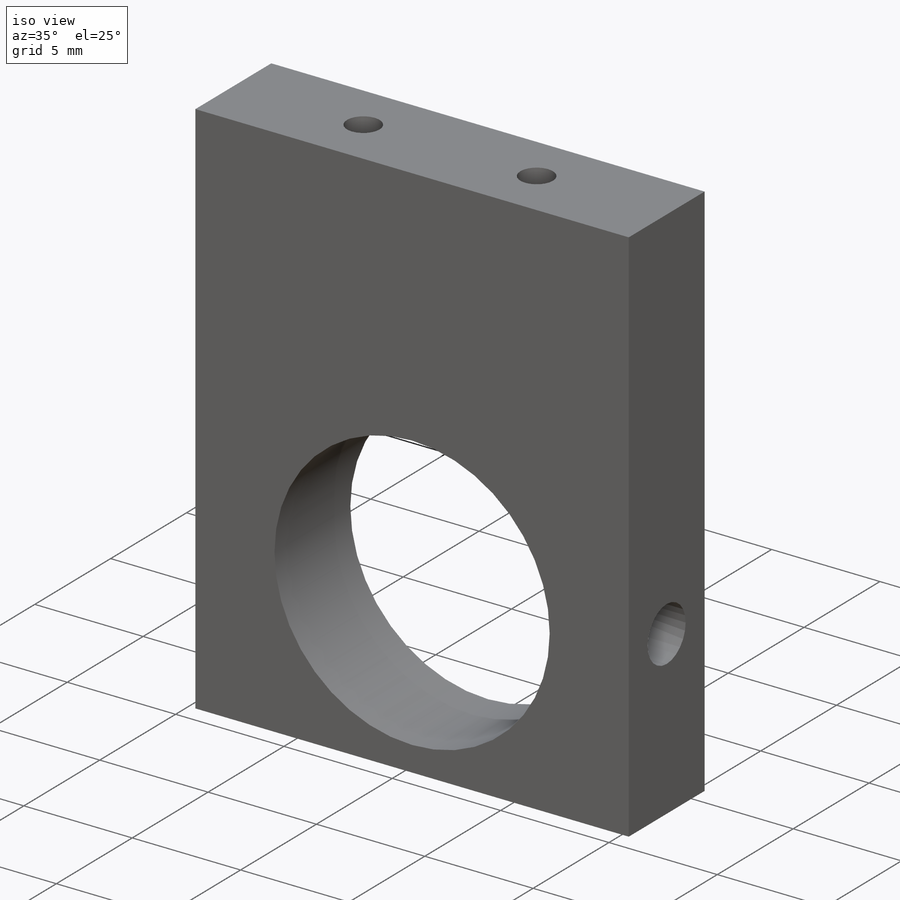
[diagram: iso view]
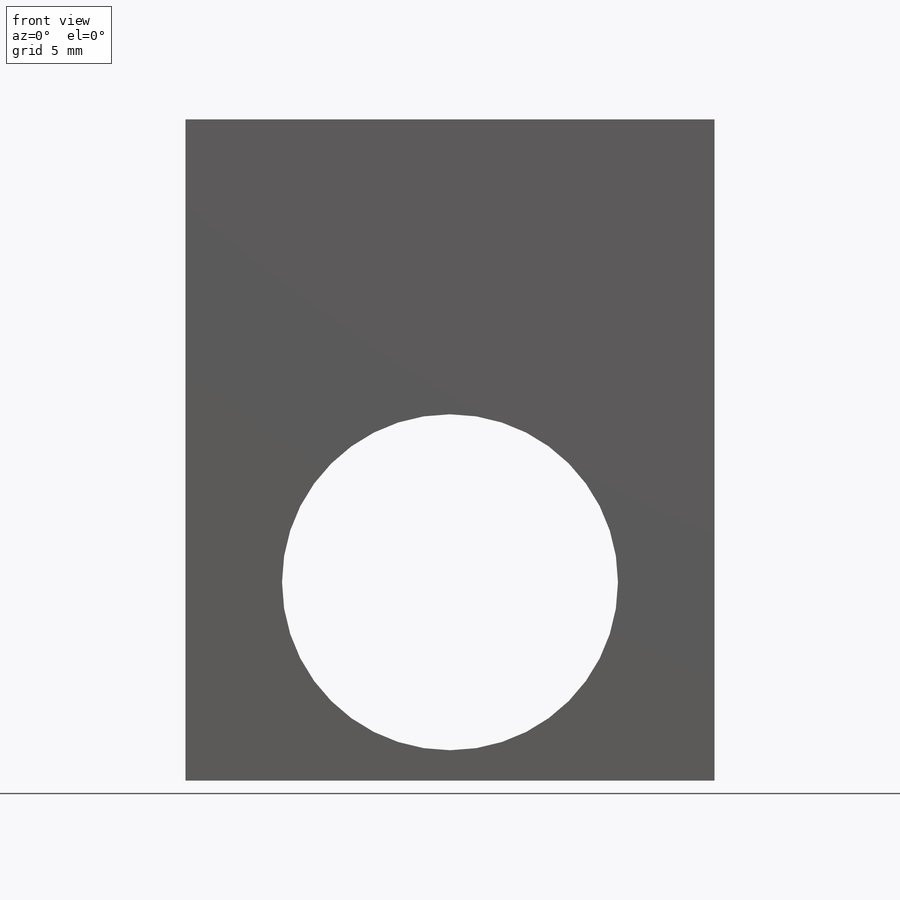
[diagram: front view]
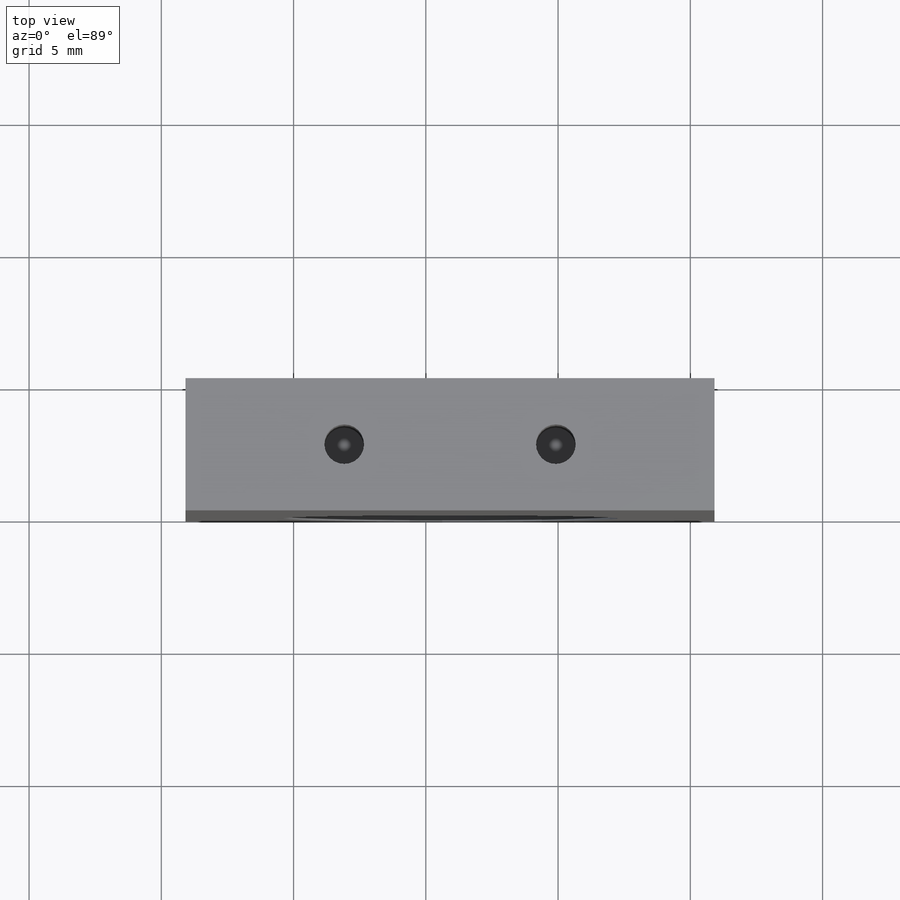
[diagram: top view]
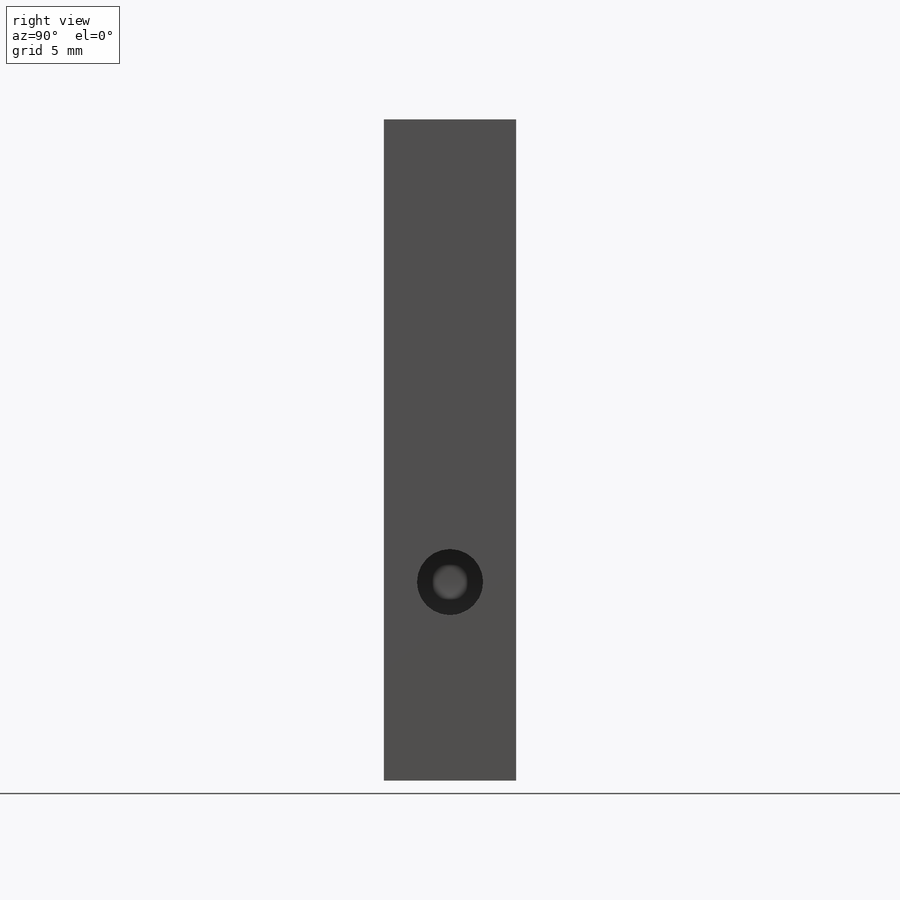
[diagram: right view]
SOLIDWORKS PART (.sldprt)
format: sldprt  version: not decoded by parser v0  size: 164,864 bytes
history: native  units: mm
features: sketch x4, cut_extrude x3, material x1, extrude x1 (+11 scaffold rows collapsed)
feature tree (20):
  scaffold x11  (default folders/planes/origin — collapsed)
  material  "Material <not specified>"
  sketch  "Sketch1"  dims[D1=20.0mm D2=25.0mm]
  extrude  "Boss-Extrude1"  Depth=5mm
  sketch  "Sketch3"  dims[c1.D1=12.7mm c1.D2=12.7mm c1.D3=12.7mm c2.D2=17.5mm c2.D3=10.0mm]
  cut_extrude  "Cut-Extrude1"  [1 undecoded]
  sketch  "Sketch5"  dims[D3=1.5mm D4=1.5mm D1=6.0mm D2=6.0mm D5=2.5mm D6=2.5mm]
  cut_extrude  "Cut-Extrude2"  Depth=7mm
  sketch  "Sketch6"  dims[c1.D1=~1.772671mm c1.D2=2.5mm c1.D3=2.5mm c2.D1=17.5mm c2.D3=2.5mm]
  cut_extrude  "Cut-Extrude3"  [1 undecoded]
decode coverage: 6 of 8 modeling features carry decoded parameters
note: ~ marks probable driven/reference dimensions
note: 2 parameter values undecoded
note: suppression state not decoded; provenance and decode notes live in map.json
